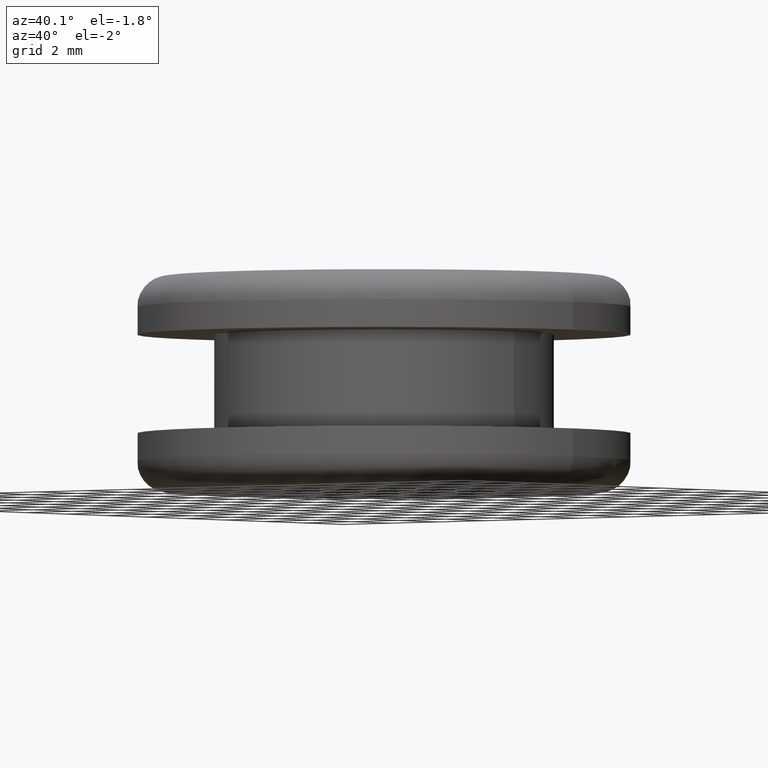
[diagram: clean part render]
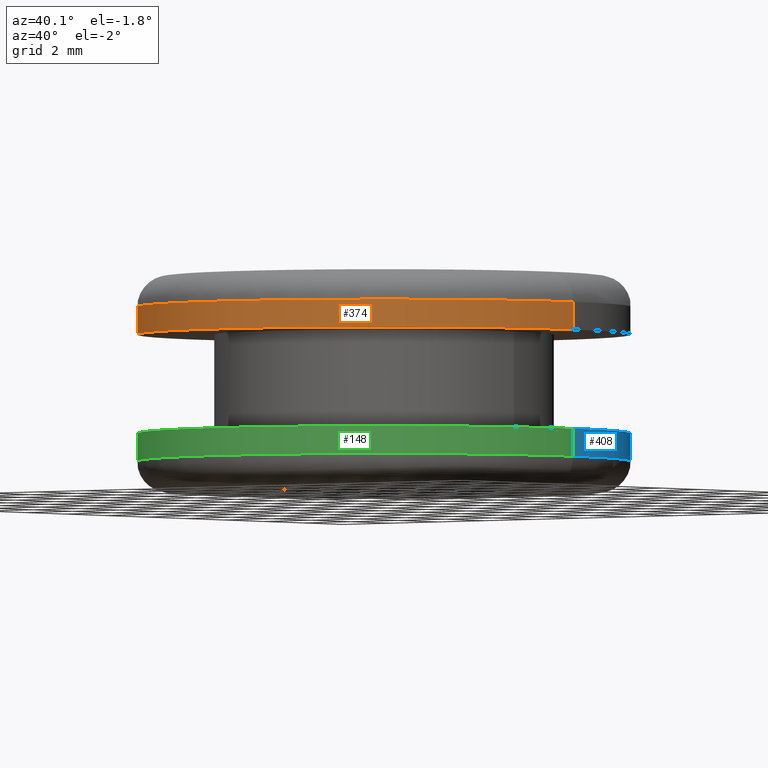
[diagram: same view with three faces highlighted in distinct colors, each labeled with its STEP entity id]
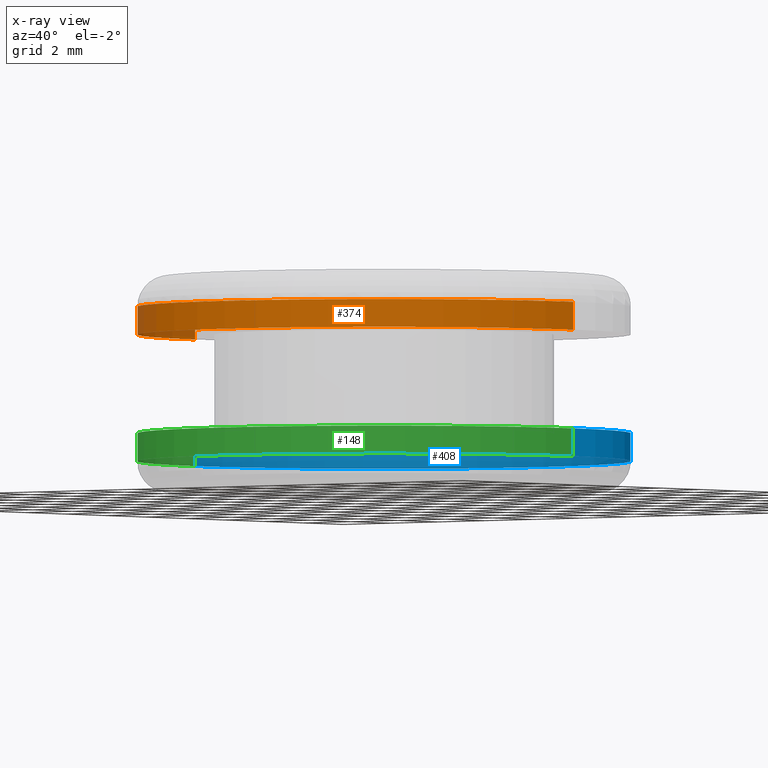
[diagram: x-ray of the same camera — body ghosted, the three highlighted faces saturated]
A machine part, auxiliary view with three faces highlighted in distinct colors.
The next image is the same camera in x-ray (body ghosted, the three faces saturated) — at least one of them is partly hidden behind the body in this view.
Their STEP definitions:

[orange] entity #374 — the highlighted cylindrical surface (partial cylindrical patch) has radius 8 mm, axis along (0, 0, -1).
#17 = AXIS2_PLACEMENT_3D ( 'NONE', #126, #48, #430 ) ;
#40 = ORIENTED_EDGE ( 'NONE', *, *, #401, .T. ) ;
#41 = CYLINDRICAL_SURFACE ( 'NONE', #17, 7.999999999875010200 ) ;
#48 = DIRECTION ( 'NONE',  ( 0.0000000000000000000, 0.0000000000000000000, -1.000000000000000000 ) ) ;
#69 = DIRECTION ( 'NONE',  ( -1.000000000000000000, 0.0000000000000000000, 0.0000000000000000000 ) ) ;
#78 = CARTESIAN_POINT ( 'NONE',  ( 107.2049372964547000, 9.797174393025757100E-016, 0.0000000000000000000 ) ) ;
#86 = CARTESIAN_POINT ( 'NONE',  ( 99.20493729657970100, 0.0000000000000000000, 146.3726952467922300 ) ) ;
#87 = DIRECTION ( 'NONE',  ( 0.0000000000000000000, 0.0000000000000000000, -1.000000000000000000 ) ) ;
#112 = VECTOR ( 'NONE', #280, 1000.000000000000000 ) ;
#116 = CARTESIAN_POINT ( 'NONE',  ( 91.20493729670468500, 0.0000000000000000000, 0.0000000000000000000 ) ) ;
#126 = CARTESIAN_POINT ( 'NONE',  ( 99.20493729657970100, 0.0000000000000000000, 0.0000000000000000000 ) ) ;
#130 = VERTEX_POINT ( 'NONE', #210 ) ;
#140 = CIRCLE ( 'NONE', #359, 7.999999999875010200 ) ;
#141 = VERTEX_POINT ( 'NONE', #256 ) ;
#147 = ORIENTED_EDGE ( 'NONE', *, *, #288, .F. ) ;
#160 = AXIS2_PLACEMENT_3D ( 'NONE', #262, #389, #69 ) ;
#187 = EDGE_CURVE ( 'NONE', #470, #141, #400, .T. ) ;
#191 = LINE ( 'NONE', #116, #274 ) ;
#208 = FACE_OUTER_BOUND ( 'NONE', #294, .T. ) ;
#210 = CARTESIAN_POINT ( 'NONE',  ( 91.20493729670468500, 0.0000000000000000000, 146.3726952467922300 ) ) ;
#231 = CARTESIAN_POINT ( 'NONE',  ( 107.2049372964547000, 9.797174393025757100E-016, 146.3726952467922300 ) ) ;
#232 = CIRCLE ( 'NONE', #160, 7.999999999875010200 ) ;
#234 = DIRECTION ( 'NONE',  ( -1.000000000000000000, 0.0000000000000000000, 0.0000000000000000000 ) ) ;
#256 = CARTESIAN_POINT ( 'NONE',  ( 107.2049372964547000, 9.797174393025757100E-016, 145.4726952467922000 ) ) ;
#262 = CARTESIAN_POINT ( 'NONE',  ( 99.20493729657970100, 0.0000000000000000000, 145.4726952467922000 ) ) ;
#274 = VECTOR ( 'NONE', #87, 1000.000000000000000 ) ;
#280 = DIRECTION ( 'NONE',  ( 0.0000000000000000000, 0.0000000000000000000, -1.000000000000000000 ) ) ;
#288 = EDGE_CURVE ( 'NONE', #141, #358, #232, .T. ) ;
#294 = EDGE_LOOP ( 'NONE', ( #310, #434, #40, #147 ) ) ;
#310 = ORIENTED_EDGE ( 'NONE', *, *, #187, .F. ) ;
#312 = CARTESIAN_POINT ( 'NONE',  ( 91.20493729670468500, 0.0000000000000000000, 145.4726952467922000 ) ) ;
#342 = DIRECTION ( 'NONE',  ( 0.0000000000000000000, 0.0000000000000000000, -1.000000000000000000 ) ) ;
#356 = EDGE_CURVE ( 'NONE', #470, #130, #140, .T. ) ;
#358 = VERTEX_POINT ( 'NONE', #312 ) ;
#359 = AXIS2_PLACEMENT_3D ( 'NONE', #86, #342, #234 ) ;
#374 = ADVANCED_FACE ( 'NONE', ( #208 ), #41, .T. ) ;
#389 = DIRECTION ( 'NONE',  ( 0.0000000000000000000, 0.0000000000000000000, -1.000000000000000000 ) ) ;
#400 = LINE ( 'NONE', #78, #112 ) ;
#401 = EDGE_CURVE ( 'NONE', #130, #358, #191, .T. ) ;
#430 = DIRECTION ( 'NONE',  ( -1.000000000000000000, 0.0000000000000000000, 0.0000000000000000000 ) ) ;
#434 = ORIENTED_EDGE ( 'NONE', *, *, #356, .T. ) ;
#470 = VERTEX_POINT ( 'NONE', #231 ) ;

[blue] entity #408 — the highlighted cylindrical surface (partial cylindrical patch) has radius 8 mm, axis along (0, 0, -1).
#10 = EDGE_CURVE ( 'NONE', #275, #220, #124, .T. ) ;
#11 = CARTESIAN_POINT ( 'NONE',  ( 99.20493729657970100, 0.0000000000000000000, 141.3726952467922000 ) ) ;
#26 = LINE ( 'NONE', #431, #412 ) ;
#36 = EDGE_CURVE ( 'NONE', #52, #275, #206, .T. ) ;
#52 = VERTEX_POINT ( 'NONE', #296 ) ;
#73 = AXIS2_PLACEMENT_3D ( 'NONE', #478, #388, #81 ) ;
#74 = VECTOR ( 'NONE', #134, 1000.000000000000000 ) ;
#75 = CARTESIAN_POINT ( 'NONE',  ( 107.2049372964547000, 9.797174393025757100E-016, 141.3726952467922000 ) ) ;
#81 = DIRECTION ( 'NONE',  ( -1.000000000000000000, 0.0000000000000000000, 0.0000000000000000000 ) ) ;
#97 = CARTESIAN_POINT ( 'NONE',  ( 107.2049372964546200, 9.797174393025656500E-016, 142.2726952467919800 ) ) ;
#124 = CIRCLE ( 'NONE', #469, 7.999999999875010200 ) ;
#134 = DIRECTION ( 'NONE',  ( 0.0000000000000000000, 0.0000000000000000000, -1.000000000000000000 ) ) ;
#135 = EDGE_CURVE ( 'NONE', #52, #169, #199, .T. ) ;
#162 = EDGE_CURVE ( 'NONE', #169, #220, #26, .T. ) ;
#169 = VERTEX_POINT ( 'NONE', #97 ) ;
#172 = ORIENTED_EDGE ( 'NONE', *, *, #162, .T. ) ;
#175 = DIRECTION ( 'NONE',  ( -1.000000000000000000, 0.0000000000000000000, 0.0000000000000000000 ) ) ;
#194 = ORIENTED_EDGE ( 'NONE', *, *, #135, .T. ) ;
#199 = CIRCLE ( 'NONE', #278, 7.999999999874912500 ) ;
#206 = LINE ( 'NONE', #429, #74 ) ;
#220 = VERTEX_POINT ( 'NONE', #75 ) ;
#236 = CARTESIAN_POINT ( 'NONE',  ( 91.20493729670468500, 0.0000000000000000000, 141.3726952467922000 ) ) ;
#243 = DIRECTION ( 'NONE',  ( -1.000000000000000000, 0.0000000000000000000, 0.0000000000000000000 ) ) ;
#261 = ORIENTED_EDGE ( 'NONE', *, *, #36, .F. ) ;
#263 = FACE_OUTER_BOUND ( 'NONE', #466, .T. ) ;
#275 = VERTEX_POINT ( 'NONE', #236 ) ;
#278 = AXIS2_PLACEMENT_3D ( 'NONE', #357, #318, #175 ) ;
#285 = DIRECTION ( 'NONE',  ( 0.0000000000000000000, 0.0000000000000000000, -1.000000000000000000 ) ) ;
#292 = DIRECTION ( 'NONE',  ( 0.0000000000000000000, 0.0000000000000000000, -1.000000000000000000 ) ) ;
#296 = CARTESIAN_POINT ( 'NONE',  ( 91.20493729670478400, 0.0000000000000000000, 142.2726952467919800 ) ) ;
#318 = DIRECTION ( 'NONE',  ( 0.0000000000000000000, 0.0000000000000000000, -1.000000000000000000 ) ) ;
#357 = CARTESIAN_POINT ( 'NONE',  ( 99.20493729657970100, 0.0000000000000000000, 142.2726952467919800 ) ) ;
#378 = ORIENTED_EDGE ( 'NONE', *, *, #10, .F. ) ;
#388 = DIRECTION ( 'NONE',  ( 0.0000000000000000000, 0.0000000000000000000, -1.000000000000000000 ) ) ;
#408 = ADVANCED_FACE ( 'NONE', ( #263 ), #463, .T. ) ;
#412 = VECTOR ( 'NONE', #292, 1000.000000000000000 ) ;
#429 = CARTESIAN_POINT ( 'NONE',  ( 91.20493729670474200, 0.0000000000000000000, 0.0000000000000000000 ) ) ;
#431 = CARTESIAN_POINT ( 'NONE',  ( 107.2049372964546600, 9.797174393025694000E-016, 0.0000000000000000000 ) ) ;
#463 = CYLINDRICAL_SURFACE ( 'NONE', #73, 7.999999999874954200 ) ;
#466 = EDGE_LOOP ( 'NONE', ( #194, #172, #378, #261 ) ) ;
#469 = AXIS2_PLACEMENT_3D ( 'NONE', #11, #285, #243 ) ;
#478 = CARTESIAN_POINT ( 'NONE',  ( 99.20493729657970100, 0.0000000000000000000, 0.0000000000000000000 ) ) ;

[green] entity #148 — the highlighted cylindrical surface (partial cylindrical patch) has radius 8 mm, axis along (0, 0, -1).
#19 = DIRECTION ( 'NONE',  ( -1.000000000000000000, 0.0000000000000000000, 0.0000000000000000000 ) ) ;
#25 = CYLINDRICAL_SURFACE ( 'NONE', #418, 7.999999999874954200 ) ;
#26 = LINE ( 'NONE', #431, #412 ) ;
#28 = DIRECTION ( 'NONE',  ( -1.000000000000000000, 0.0000000000000000000, 0.0000000000000000000 ) ) ;
#36 = EDGE_CURVE ( 'NONE', #52, #275, #206, .T. ) ;
#38 = ORIENTED_EDGE ( 'NONE', *, *, #162, .F. ) ;
#42 = DIRECTION ( 'NONE',  ( 0.0000000000000000000, 0.0000000000000000000, -1.000000000000000000 ) ) ;
#52 = VERTEX_POINT ( 'NONE', #296 ) ;
#74 = VECTOR ( 'NONE', #134, 1000.000000000000000 ) ;
#75 = CARTESIAN_POINT ( 'NONE',  ( 107.2049372964547000, 9.797174393025757100E-016, 141.3726952467922000 ) ) ;
#82 = AXIS2_PLACEMENT_3D ( 'NONE', #372, #42, #28 ) ;
#97 = CARTESIAN_POINT ( 'NONE',  ( 107.2049372964546200, 9.797174393025656500E-016, 142.2726952467919800 ) ) ;
#125 = DIRECTION ( 'NONE',  ( 0.0000000000000000000, 0.0000000000000000000, -1.000000000000000000 ) ) ;
#134 = DIRECTION ( 'NONE',  ( 0.0000000000000000000, 0.0000000000000000000, -1.000000000000000000 ) ) ;
#148 = ADVANCED_FACE ( 'NONE', ( #223 ), #25, .T. ) ;
#162 = EDGE_CURVE ( 'NONE', #169, #220, #26, .T. ) ;
#168 = EDGE_CURVE ( 'NONE', #220, #275, #394, .T. ) ;
#169 = VERTEX_POINT ( 'NONE', #97 ) ;
#206 = LINE ( 'NONE', #429, #74 ) ;
#220 = VERTEX_POINT ( 'NONE', #75 ) ;
#223 = FACE_OUTER_BOUND ( 'NONE', #254, .T. ) ;
#236 = CARTESIAN_POINT ( 'NONE',  ( 91.20493729670468500, 0.0000000000000000000, 141.3726952467922000 ) ) ;
#238 = ORIENTED_EDGE ( 'NONE', *, *, #241, .T. ) ;
#241 = EDGE_CURVE ( 'NONE', #169, #52, #475, .T. ) ;
#254 = EDGE_LOOP ( 'NONE', ( #38, #238, #354, #399 ) ) ;
#275 = VERTEX_POINT ( 'NONE', #236 ) ;
#292 = DIRECTION ( 'NONE',  ( 0.0000000000000000000, 0.0000000000000000000, -1.000000000000000000 ) ) ;
#296 = CARTESIAN_POINT ( 'NONE',  ( 91.20493729670478400, 0.0000000000000000000, 142.2726952467919800 ) ) ;
#324 = DIRECTION ( 'NONE',  ( 0.0000000000000000000, 0.0000000000000000000, -1.000000000000000000 ) ) ;
#331 = CARTESIAN_POINT ( 'NONE',  ( 99.20493729657970100, 0.0000000000000000000, 0.0000000000000000000 ) ) ;
#350 = DIRECTION ( 'NONE',  ( -1.000000000000000000, 0.0000000000000000000, 0.0000000000000000000 ) ) ;
#354 = ORIENTED_EDGE ( 'NONE', *, *, #36, .T. ) ;
#372 = CARTESIAN_POINT ( 'NONE',  ( 99.20493729657970100, 0.0000000000000000000, 142.2726952467919800 ) ) ;
#394 = CIRCLE ( 'NONE', #396, 7.999999999875010200 ) ;
#396 = AXIS2_PLACEMENT_3D ( 'NONE', #433, #125, #350 ) ;
#399 = ORIENTED_EDGE ( 'NONE', *, *, #168, .F. ) ;
#412 = VECTOR ( 'NONE', #292, 1000.000000000000000 ) ;
#418 = AXIS2_PLACEMENT_3D ( 'NONE', #331, #324, #19 ) ;
#429 = CARTESIAN_POINT ( 'NONE',  ( 91.20493729670474200, 0.0000000000000000000, 0.0000000000000000000 ) ) ;
#431 = CARTESIAN_POINT ( 'NONE',  ( 107.2049372964546600, 9.797174393025694000E-016, 0.0000000000000000000 ) ) ;
#433 = CARTESIAN_POINT ( 'NONE',  ( 99.20493729657970100, 0.0000000000000000000, 141.3726952467922000 ) ) ;
#475 = CIRCLE ( 'NONE', #82, 7.999999999874912500 ) ;